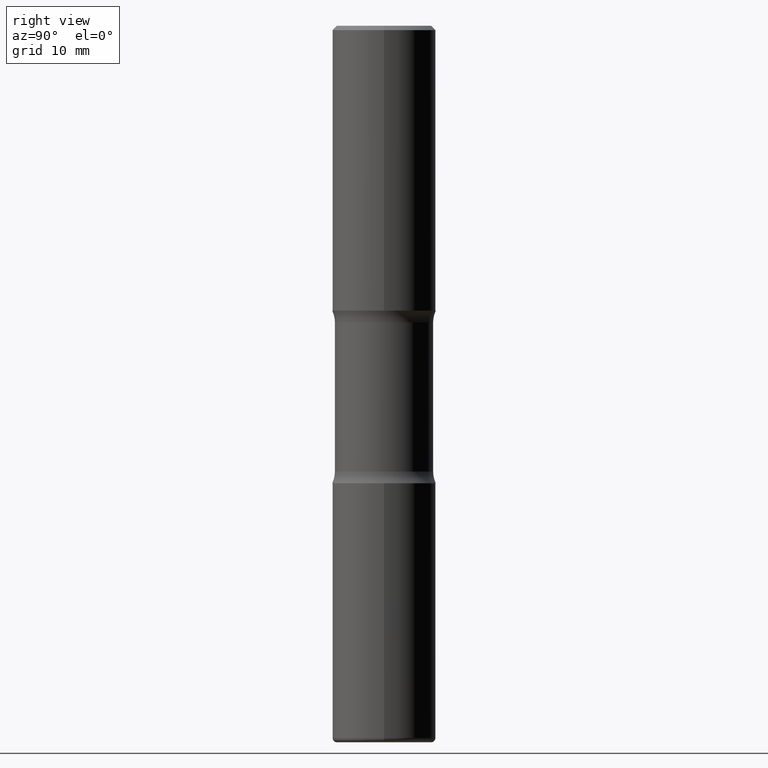
[diagram: clean part render]
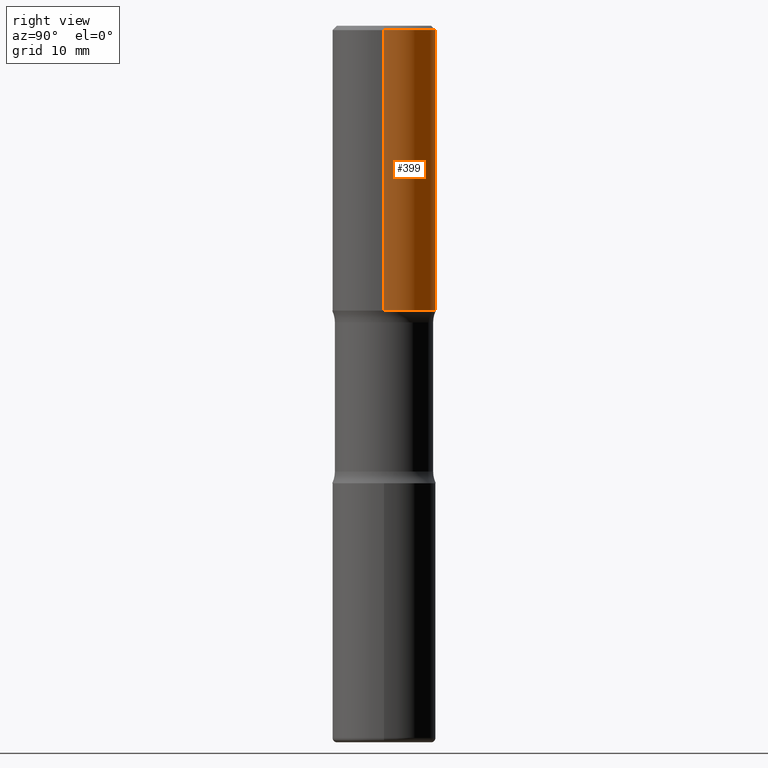
[diagram: same view with one face highlighted and labeled with its STEP entity id]
A machine part, right view. The second image highlights one B-rep face of the part: STEP entity #399.
In plain terms, the highlighted cylindrical surface (partial cylindrical patch) has radius 5.9995 mm, axis along (-0, 0, 1).
Its self-contained STEP definition (entity closure, byte-faithful):
#1 = ORIENTED_EDGE ( 'NONE', *, *, #229, .F. ) ;
#17 = CARTESIAN_POINT ( 'NONE',  ( 0.2361999999999999655, -1.690279253850498574E-15, -0.02000000000000006981 ) ) ;
#41 = EDGE_CURVE ( 'NONE', #351, #486, #274, .T. ) ;
#73 = LINE ( 'NONE', #373, #330 ) ;
#74 = EDGE_LOOP ( 'NONE', ( #135, #558, #1, #484 ) ) ;
#104 = VERTEX_POINT ( 'NONE', #17 ) ;
#108 = DIRECTION ( 'NONE',  ( -2.445468806185136597E-29, 3.491481338843145583E-15, 1.000000000000000000 ) ) ;
#111 = CARTESIAN_POINT ( 'NONE',  ( 3.177153072995728197E-29, -4.536132555425013945E-15, -1.299199999999999688 ) ) ;
#113 = DIRECTION ( 'NONE',  ( -2.445468806185136597E-29, 3.491481338843145583E-15, 1.000000000000000000 ) ) ;
#119 = AXIS2_PLACEMENT_3D ( 'NONE', #157, #423, #333 ) ;
#135 = ORIENTED_EDGE ( 'NONE', *, *, #148, .T. ) ;
#148 = EDGE_CURVE ( 'NONE', #212, #351, #290, .T. ) ;
#157 = CARTESIAN_POINT ( 'NONE',  ( 4.890937612370289799E-31, -6.982962677686315028E-17, -0.02000000000000006981 ) ) ;
#181 = FACE_OUTER_BOUND ( 'NONE', #74, .T. ) ;
#205 = CARTESIAN_POINT ( 'NONE',  ( 0.2362000000000002431, -6.185508339894511259E-15, -1.299199999999999688 ) ) ;
#212 = VERTEX_POINT ( 'NONE', #205 ) ;
#214 = EDGE_CURVE ( 'NONE', #212, #104, #73, .T. ) ;
#215 = CARTESIAN_POINT ( 'NONE',  ( -0.2362000000000002709, -6.246791492355790717E-16, -1.299199999999999688 ) ) ;
#229 = EDGE_CURVE ( 'NONE', #104, #486, #282, .T. ) ;
#240 = DIRECTION ( 'NONE',  ( 1.000000000000000000, -6.982962677686266711E-15, 4.876176775795935793E-29 ) ) ;
#255 = AXIS2_PLACEMENT_3D ( 'NONE', #111, #108, #544 ) ;
#272 = VECTOR ( 'NONE', #314, 39.37007874015748143 ) ;
#274 = LINE ( 'NONE', #361, #272 ) ;
#282 = CIRCLE ( 'NONE', #119, 0.2361999999999999655 ) ;
#290 = CIRCLE ( 'NONE', #255, 0.2362000000000002431 ) ;
#314 = DIRECTION ( 'NONE',  ( -2.445468806185136877E-29, 3.491481338843145188E-15, 1.000000000000000000 ) ) ;
#330 = VECTOR ( 'NONE', #538, 39.37007874015748143 ) ;
#333 = DIRECTION ( 'NONE',  ( 1.000000000000000000, -6.982962677686266711E-15, 0.000000000000000000 ) ) ;
#351 = VERTEX_POINT ( 'NONE', #215 ) ;
#361 = CARTESIAN_POINT ( 'NONE',  ( -0.2362000000000001043, 1.678301941865357380E-15, -1.161852468318209317E-29 ) ) ;
#369 = CARTESIAN_POINT ( 'NONE',  ( -0.2361999999999999655, 1.579546157692632833E-15, -0.02000000000000006981 ) ) ;
#373 = CARTESIAN_POINT ( 'NONE',  ( 0.2362000000000001043, -1.649375784469496920E-15, 1.151752954443000508E-29 ) ) ;
#399 = ADVANCED_FACE ( 'NONE', ( #181 ), #451, .T. ) ;
#423 = DIRECTION ( 'NONE',  ( -2.445468806185136597E-29, 3.491481338843145583E-15, 1.000000000000000000 ) ) ;
#451 = CYLINDRICAL_SURFACE ( 'NONE', #471, 0.2362000000000001043 ) ;
#471 = AXIS2_PLACEMENT_3D ( 'NONE', #491, #113, #240 ) ;
#484 = ORIENTED_EDGE ( 'NONE', *, *, #214, .F. ) ;
#486 = VERTEX_POINT ( 'NONE', #369 ) ;
#491 = CARTESIAN_POINT ( 'NONE',  ( 0.000000000000000000, 0.000000000000000000, 0.000000000000000000 ) ) ;
#538 = DIRECTION ( 'NONE',  ( -2.445468806185136877E-29, 3.491481338843145188E-15, 1.000000000000000000 ) ) ;
#544 = DIRECTION ( 'NONE',  ( 1.000000000000000000, -6.982962677686265922E-15, 0.000000000000000000 ) ) ;
#558 = ORIENTED_EDGE ( 'NONE', *, *, #41, .T. ) ;